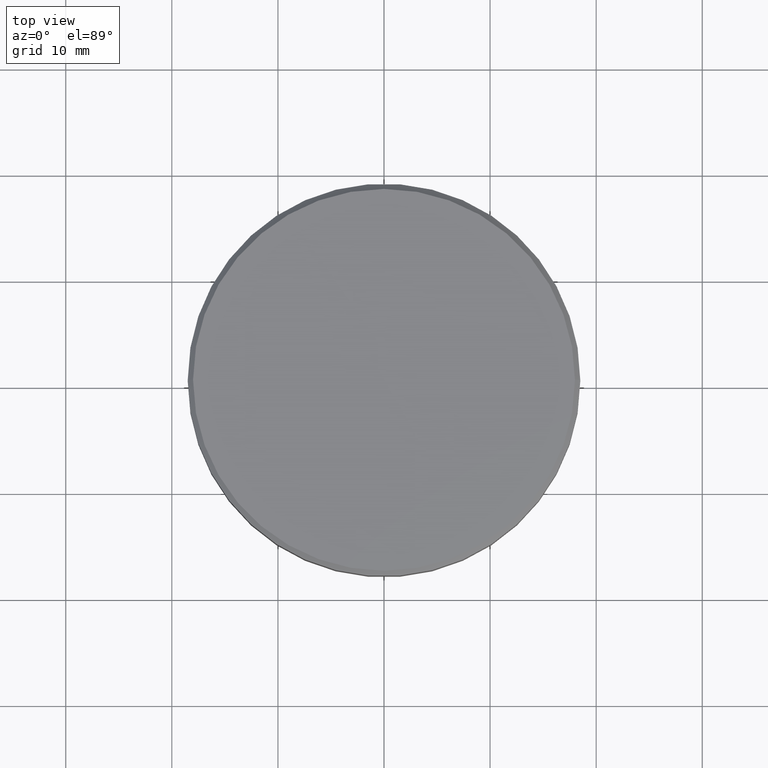
[diagram: clean part render]
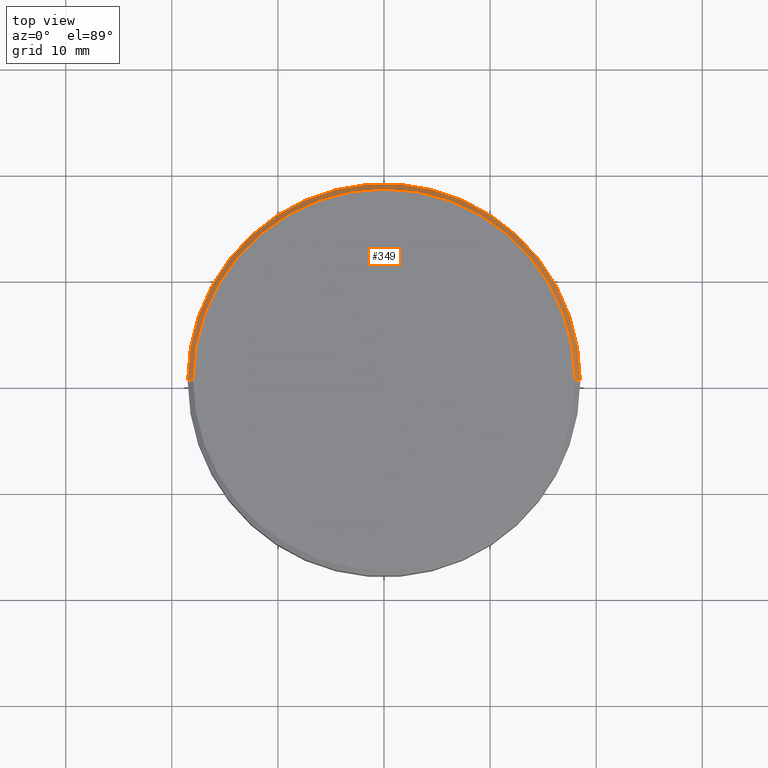
[diagram: same view with one face highlighted and labeled with its STEP entity id]
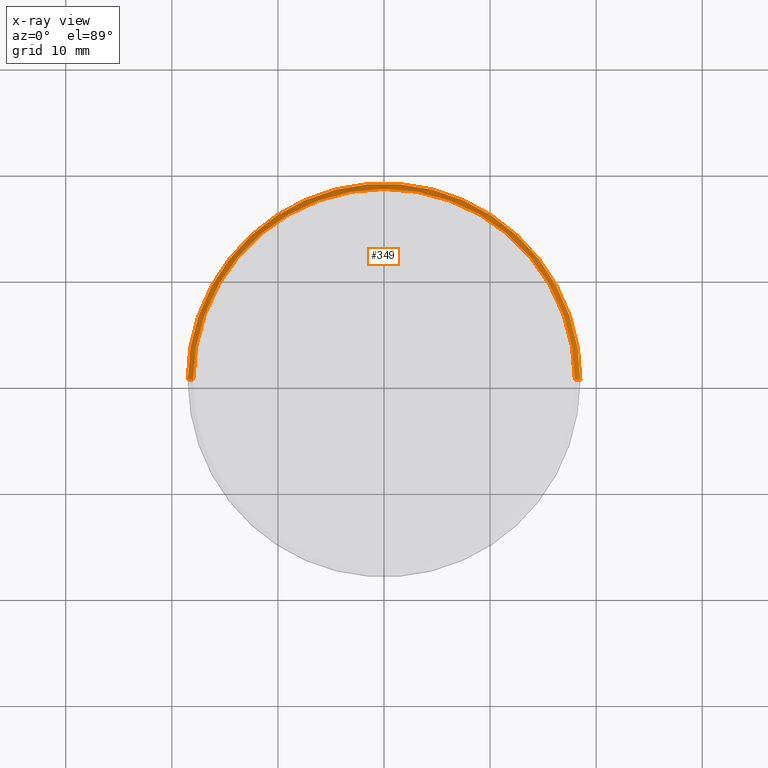
[diagram: x-ray of the same camera — body ghosted, the highlighted face saturated]
A machine part, top view. The second image highlights one B-rep face of the part: STEP entity #349.
The next image is the same camera in x-ray: the body ghosted, the highlighted face saturated — about 0% of this face is hidden behind the body in this view.
In plain terms, the highlighted conical surface has half-angle 45 deg.
Its self-contained STEP definition (entity closure, byte-faithful):
#4 = EDGE_CURVE ( 'NONE', #241, #176, #19, .T. ) ;
#11 = AXIS2_PLACEMENT_3D ( 'NONE', #155, #395, #126 ) ;
#15 = CARTESIAN_POINT ( 'NONE',  ( -18.00000000000001066, 0.000000000000000000, 0.000000000000000000 ) ) ;
#19 = LINE ( 'NONE', #84, #355 ) ;
#55 = EDGE_CURVE ( 'NONE', #135, #176, #185, .T. ) ;
#58 = VERTEX_POINT ( 'NONE', #306 ) ;
#62 = CIRCLE ( 'NONE', #387, 18.00000000000001066 ) ;
#64 = ORIENTED_EDGE ( 'NONE', *, *, #270, .F. ) ;
#72 = ORIENTED_EDGE ( 'NONE', *, *, #55, .F. ) ;
#76 = CARTESIAN_POINT ( 'NONE',  ( 18.00000000000001066, 2.234980408443920004E-15, 0.000000000000000000 ) ) ;
#84 = CARTESIAN_POINT ( 'NONE',  ( 18.00000000000001066, 2.204364238465237006E-15, 0.000000000000000000 ) ) ;
#126 = DIRECTION ( 'NONE',  ( 1.000000000000000000, 0.000000000000000000, 0.000000000000000000 ) ) ;
#135 = VERTEX_POINT ( 'NONE', #318 ) ;
#137 = VECTOR ( 'NONE', #145, 1000.000000000000114 ) ;
#145 = DIRECTION ( 'NONE',  ( -0.7071067811865500152, 0.000000000000000000, -0.7071067811865451302 ) ) ;
#155 = CARTESIAN_POINT ( 'NONE',  ( 0.000000000000000000, 0.000000000000000000, -0.4999999999999865663 ) ) ;
#156 = ORIENTED_EDGE ( 'NONE', *, *, #4, .T. ) ;
#170 = DIRECTION ( 'NONE',  ( 0.7071067811865500152, 8.659560562354962440E-17, -0.7071067811865451302 ) ) ;
#176 = VERTEX_POINT ( 'NONE', #216 ) ;
#179 = FACE_OUTER_BOUND ( 'NONE', #181, .T. ) ;
#181 = EDGE_LOOP ( 'NONE', ( #406, #156, #72, #64 ) ) ;
#185 = CIRCLE ( 'NONE', #11, 18.50000000000000000 ) ;
#201 = DIRECTION ( 'NONE',  ( 0.000000000000000000, 0.000000000000000000, -1.000000000000000000 ) ) ;
#214 = CONICAL_SURFACE ( 'NONE', #219, 18.00000000000001066, 0.7853981633974517207 ) ;
#216 = CARTESIAN_POINT ( 'NONE',  ( 18.50000000000000000, 0.000000000000000000, -0.4999999999999865663 ) ) ;
#219 = AXIS2_PLACEMENT_3D ( 'NONE', #238, #201, #261 ) ;
#223 = CARTESIAN_POINT ( 'NONE',  ( 0.000000000000000000, 0.000000000000000000, 0.000000000000000000 ) ) ;
#238 = CARTESIAN_POINT ( 'NONE',  ( 0.000000000000000000, 0.000000000000000000, 0.000000000000000000 ) ) ;
#241 = VERTEX_POINT ( 'NONE', #76 ) ;
#261 = DIRECTION ( 'NONE',  ( -1.000000000000000000, 0.000000000000000000, 0.000000000000000000 ) ) ;
#270 = EDGE_CURVE ( 'NONE', #58, #135, #394, .T. ) ;
#282 = DIRECTION ( 'NONE',  ( -0.000000000000000000, -0.000000000000000000, 1.000000000000000000 ) ) ;
#289 = DIRECTION ( 'NONE',  ( 1.000000000000000000, 0.000000000000000000, 0.000000000000000000 ) ) ;
#306 = CARTESIAN_POINT ( 'NONE',  ( -18.00000000000001066, 0.000000000000000000, 0.000000000000000000 ) ) ;
#318 = CARTESIAN_POINT ( 'NONE',  ( -18.50000000000000000, 2.265596578422603396E-15, -0.4999999999999865663 ) ) ;
#349 = ADVANCED_FACE ( 'NONE', ( #179 ), #214, .T. ) ;
#355 = VECTOR ( 'NONE', #170, 1000.000000000000114 ) ;
#387 = AXIS2_PLACEMENT_3D ( 'NONE', #223, #282, #289 ) ;
#394 = LINE ( 'NONE', #15, #137 ) ;
#395 = DIRECTION ( 'NONE',  ( 0.000000000000000000, 0.000000000000000000, -1.000000000000000000 ) ) ;
#399 = EDGE_CURVE ( 'NONE', #241, #58, #62, .T. ) ;
#406 = ORIENTED_EDGE ( 'NONE', *, *, #399, .F. ) ;